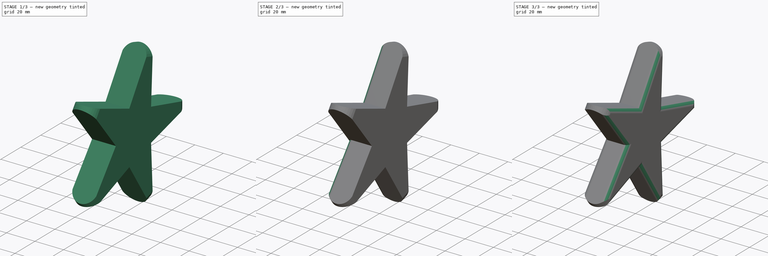
[diagram: build sequence overview — one tinted view per stage of 3, left to right]
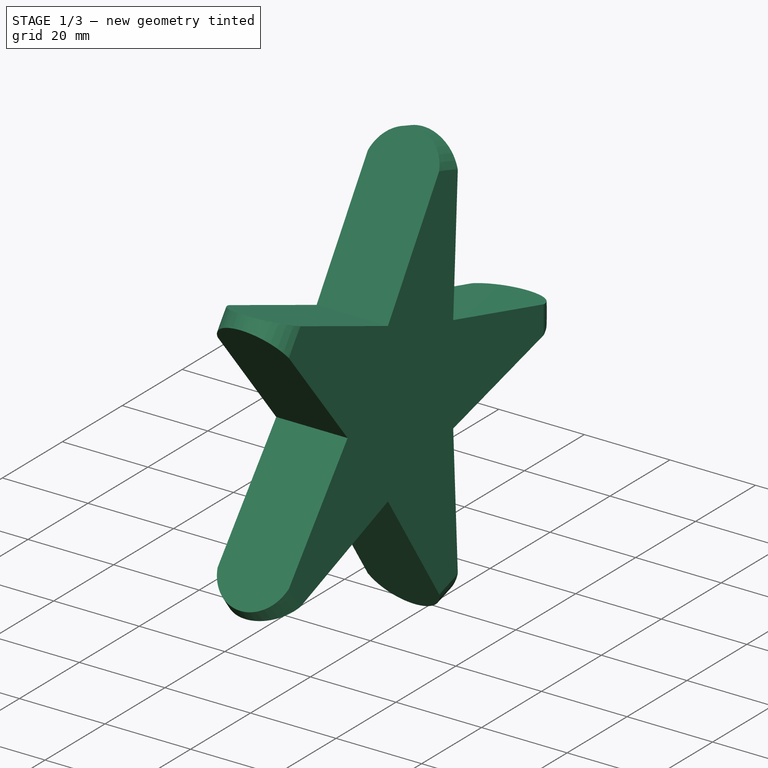
[diagram: stage 1 of 3 — iso view after this stage's code; geometry added in this stage tinted green]
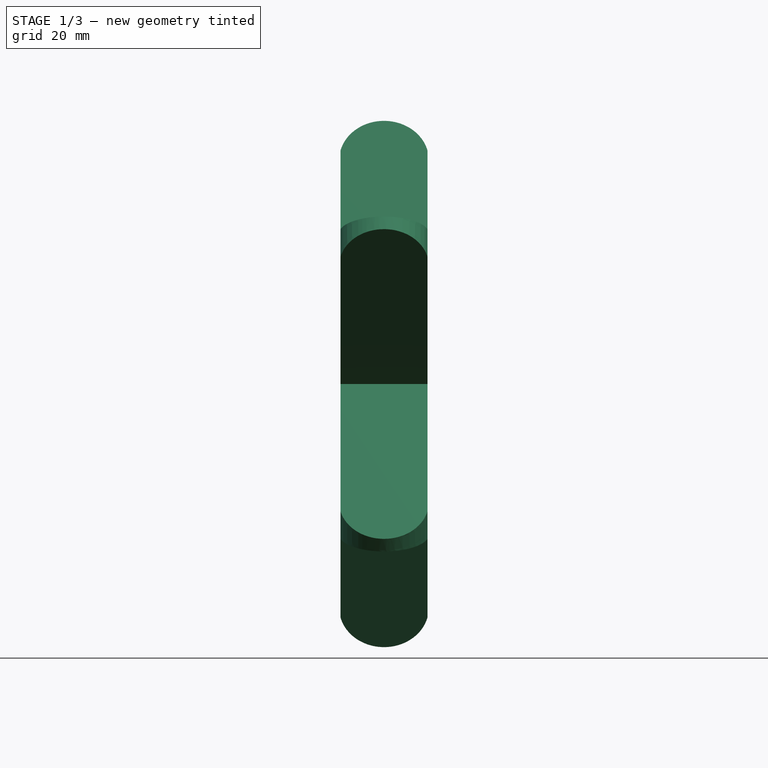
[diagram: stage 1 of 3 — front view after this stage's code; geometry added in this stage tinted green]
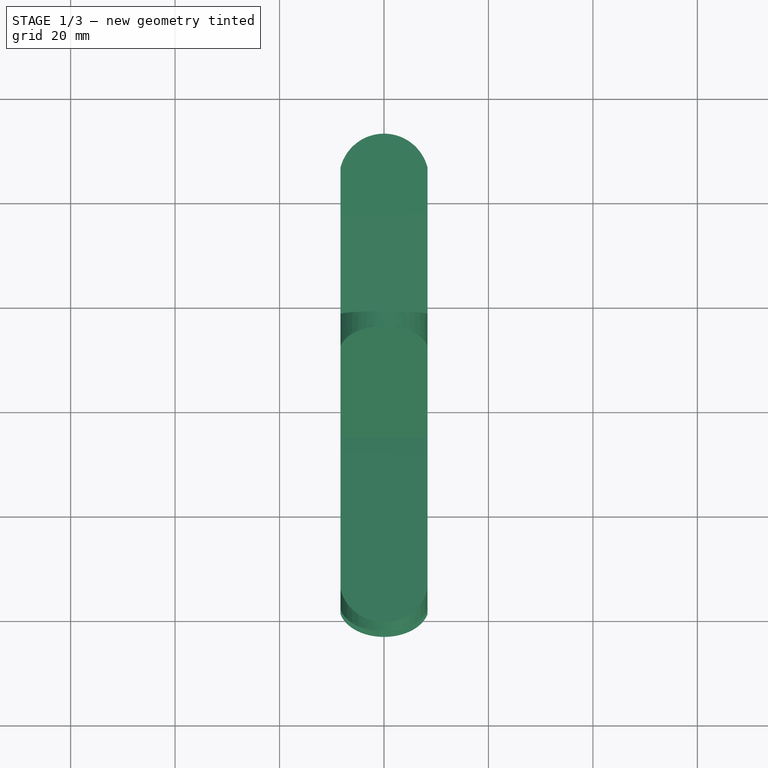
[diagram: stage 1 of 3 — top view after this stage's code; geometry added in this stage tinted green]
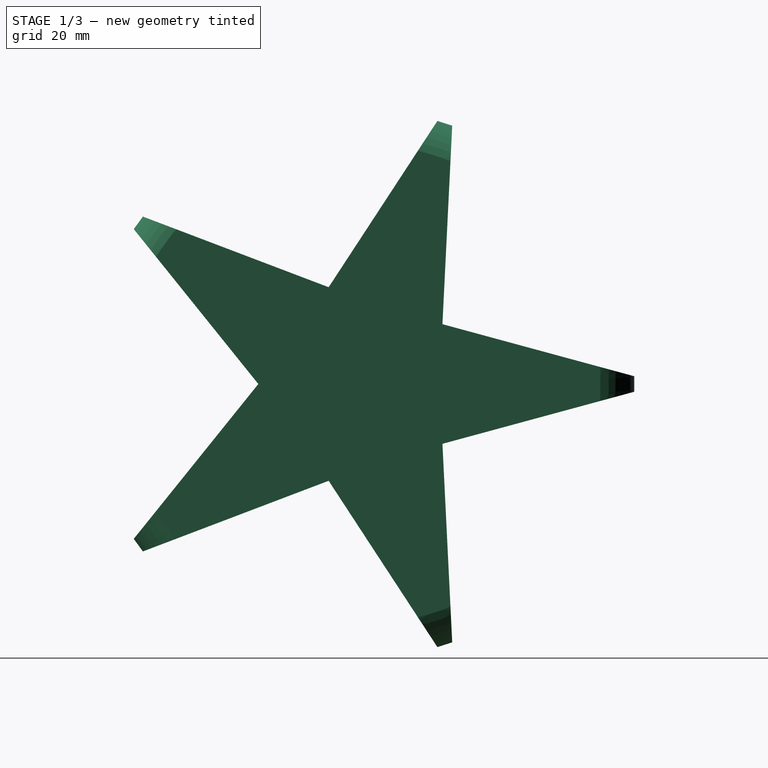
[diagram: stage 1 of 3 — right view after this stage's code; geometry added in this stage tinted green]
FCSTD DOCUMENT  (FreeCAD 0.16R6705 (Git))
Label: stella
License: All rights reserved
LicenseURL: http://it.wikipedia.org/wiki/<copyright redacted>
objects: PartDesign::Fillet×5, Sketcher::SketchObject×2, PartDesign::Revolution×1, PartDesign::Pocket×1, PartDesign::PolarPattern×1
note: 12 computed .brp shape members not serialized (recipe doc carries the construction recipe); baked Part::Feature solids carry a one-line shape summary decoded from their .brp

FEATURE [Sketcher::SketchObject] Sketch
  Placement = pos=(0,0,0) rot=(-1,0,0;4.71239rad)
  sketch-geometry (4):
    g0: LineSegment StartX=-8.34016 StartY=46.0105 StartZ=0 EndX=-8.34016 EndY=0 EndZ=0
    g1: LineSegment StartX=8.34016 StartY=46.0105 StartZ=0 EndX=8.34016 EndY=0 EndZ=0
    g2: ArcOfCircle CenterX=0 CenterY=43.9058 CenterZ=0 NormalX=0 NormalY=0 NormalZ=1 Radius=8.60162 StartAngle=0.247196 EndAngle=2.8944
    g3: LineSegment StartX=-8.34016 StartY=0 StartZ=0 EndX=8.34016 EndY=0 EndZ=0
  constraints (9):
    c: Coincident(g2,g1)
    c: Coincident(g0,g2)
    c: Symmetric(g0,g1,g-2)
    c: PointOnObject(g0,g-1)
    c: PointOnObject(g1,g-1)
    c: Symmetric(g1,g0,g-2)
    c: Coincident(g1,g3)
    c: Coincident(g0,g3)
    c: Vertical(g0)
FEATURE [PartDesign::Revolution] Revolution
  Angle = 360
  Axis = (1,0,0)
  Base = (0,0,0)
  Placement = pos=(0,0,0) rot=(-1,0,0;4.71239rad)
  ReferenceAxis = -> Sketch [H_Axis]
  Sketch = -> Sketch
FEATURE [Sketcher::SketchObject] Sketch002
  Placement = pos=(-8.34016,0,0) rot=(0.707107,0,-0.707107;3.14159rad)
  Support = -> Revolution [Face2]
  sketch-geometry (3):
    g0: LineSegment StartX=-30.9277 StartY=44.3673 StartZ=0 EndX=0 EndY=19.4846 EndZ=0
    g1: LineSegment StartX=0 StartY=19.4846 StartZ=0 EndX=30.9277 EndY=44.3673 EndZ=0
    g2: ArcOfCircle CenterX=0 CenterY=-3.26328 CenterZ=0 NormalX=0 NormalY=0 NormalZ=1 Radius=56.7908 StartAngle=0.994897 EndAngle=2.1467
  constraints (5):
    c: Coincident(g0,g1)
    c: Symmetric(g1,g0,g-2)
    c: PointOnObject(g0,g-2)
    c: Coincident(g0,g2)
    c: Coincident(g1,g2)
FEATURE [PartDesign::Pocket] Pocket
  Length = 5
  Placement = pos=(0,0,0) rot=(-1,0,0;4.71239rad)
  Sketch = -> Sketch002
  Type = 1
FEATURE [PartDesign::PolarPattern] PolarPattern
  Angle = 360
  Axis = -> Sketch002 [N_Axis]
  Occurrences = 5
  Originals = -> [Pocket]
  Placement = pos=(0,0,0) rot=(-1,0,0;4.71239rad)
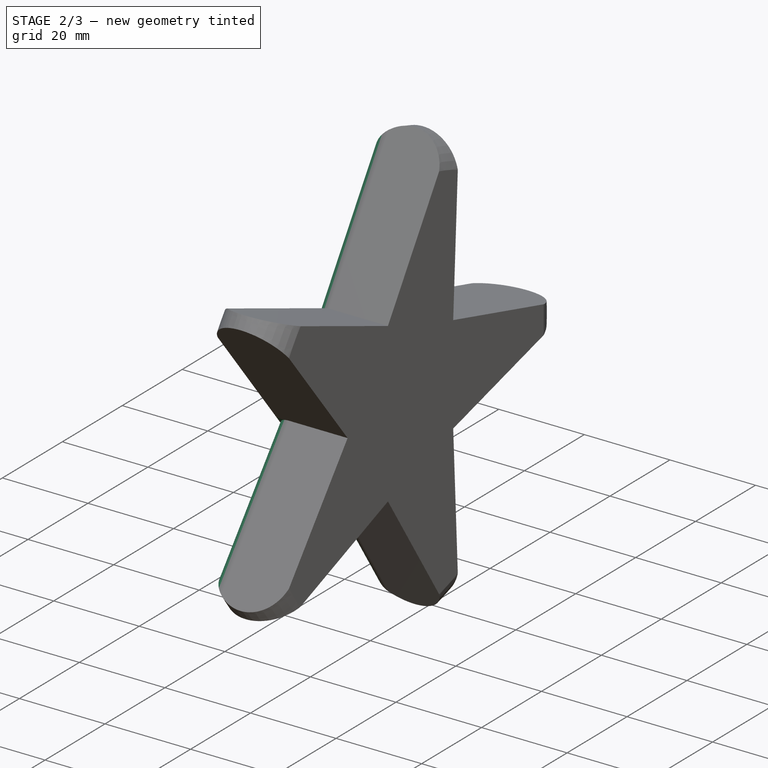
[diagram: stage 2 of 3 — iso view after this stage's code; geometry added in this stage tinted green]
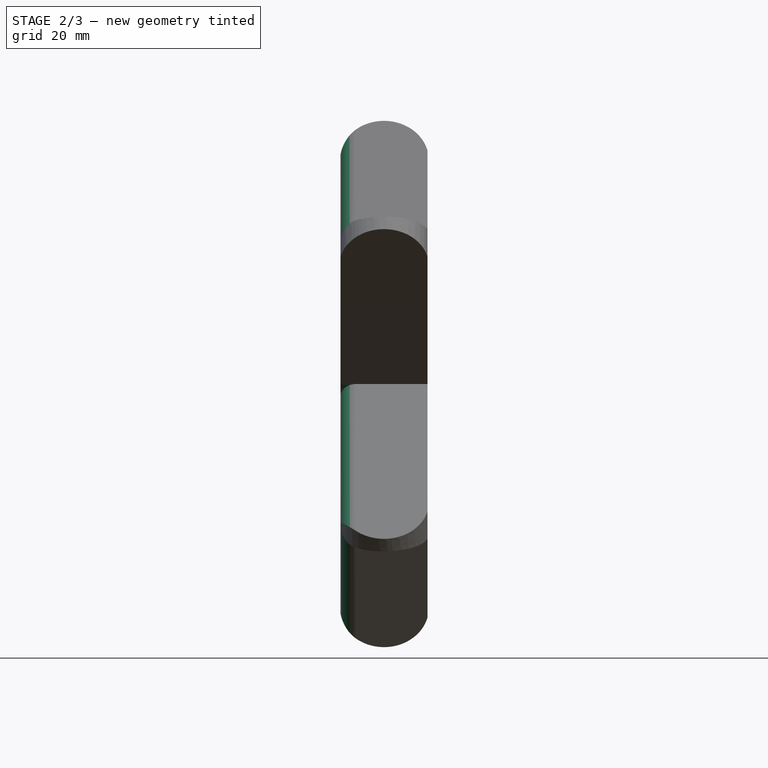
[diagram: stage 2 of 3 — front view after this stage's code; geometry added in this stage tinted green]
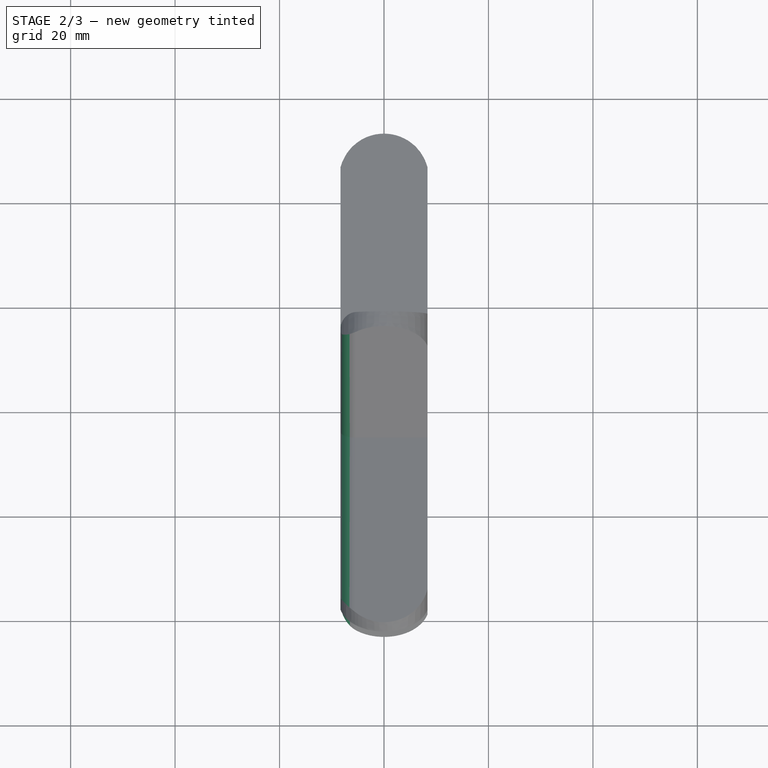
[diagram: stage 2 of 3 — top view after this stage's code; geometry added in this stage tinted green]
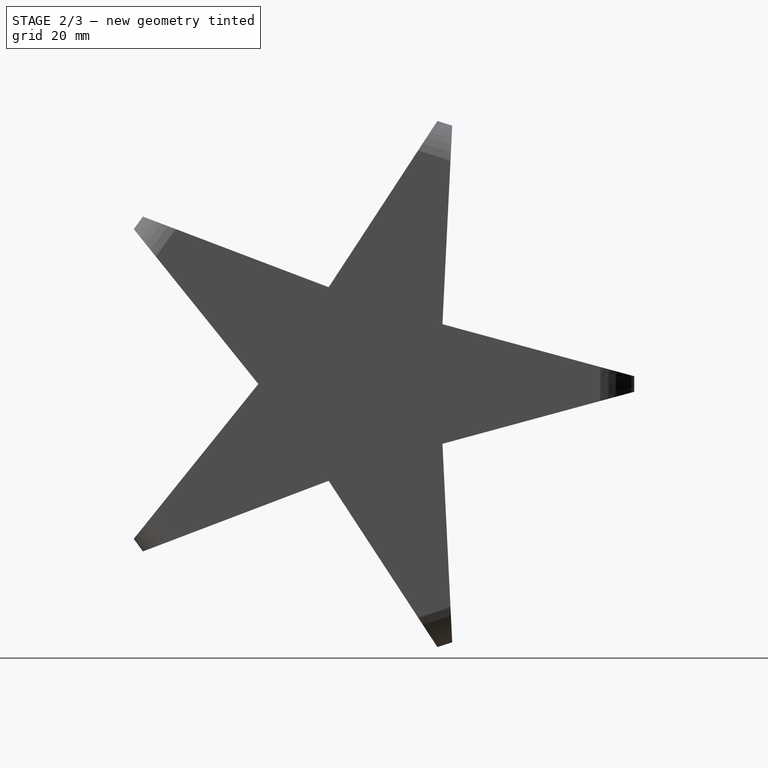
[diagram: stage 2 of 3 — right view after this stage's code; geometry added in this stage tinted green]
FEATURE [PartDesign::Fillet] Fillet
  Base = -> PolarPattern [Edge8]
  Placement = pos=(0,0,0) rot=(-1,0,0;4.71239rad)
  Radius = 3
FEATURE [PartDesign::Fillet] Fillet001
  Base = -> Fillet [Edge3,Edge5,Edge9,Edge11,Edge16,Edge12,Edge10]
  Placement = pos=(0,0,0) rot=(-1,0,0;4.71239rad)
  Radius = 3
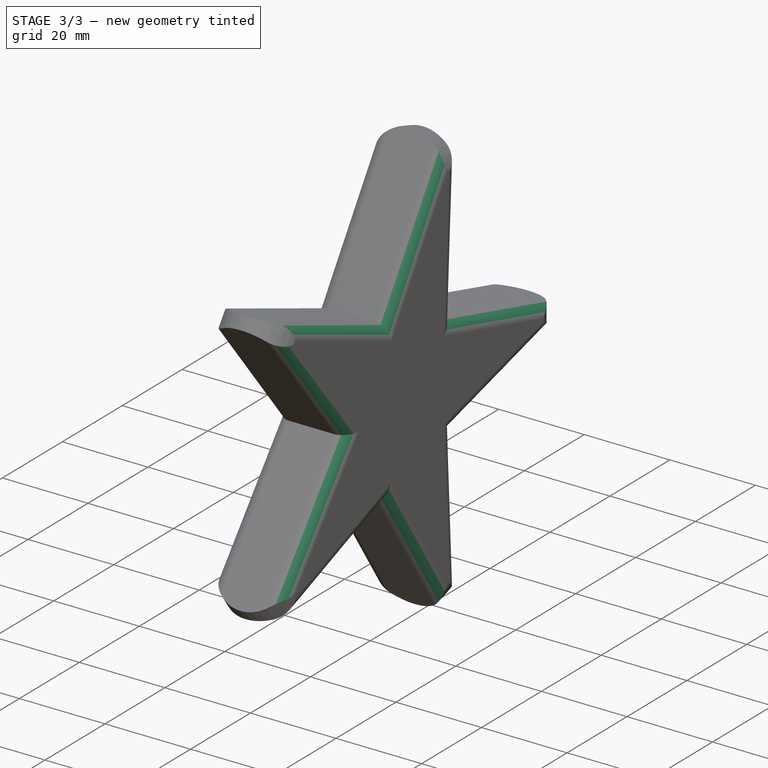
[diagram: stage 3 of 3 — iso view after this stage's code; geometry added in this stage tinted green]
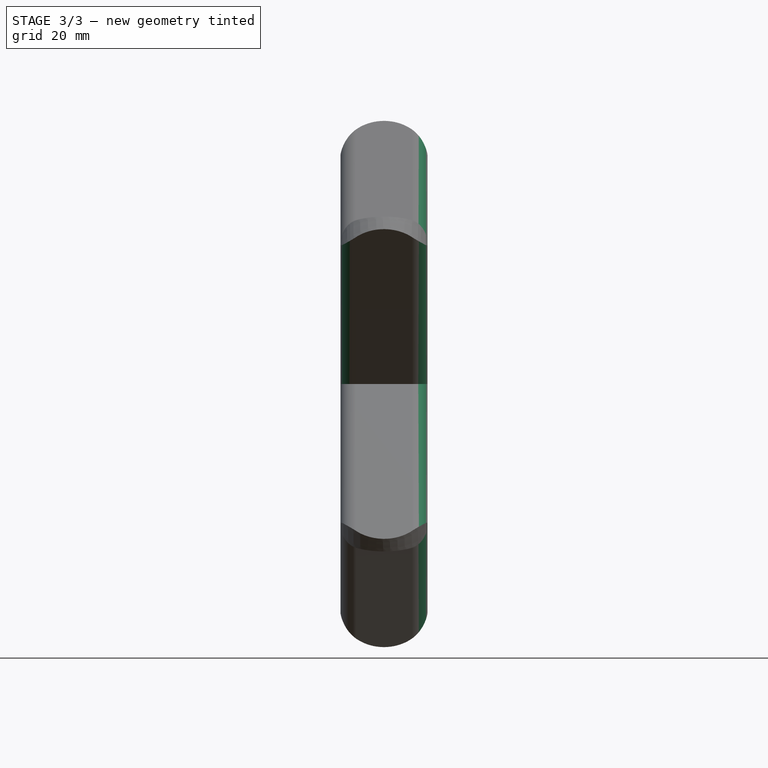
[diagram: stage 3 of 3 — front view after this stage's code; geometry added in this stage tinted green]
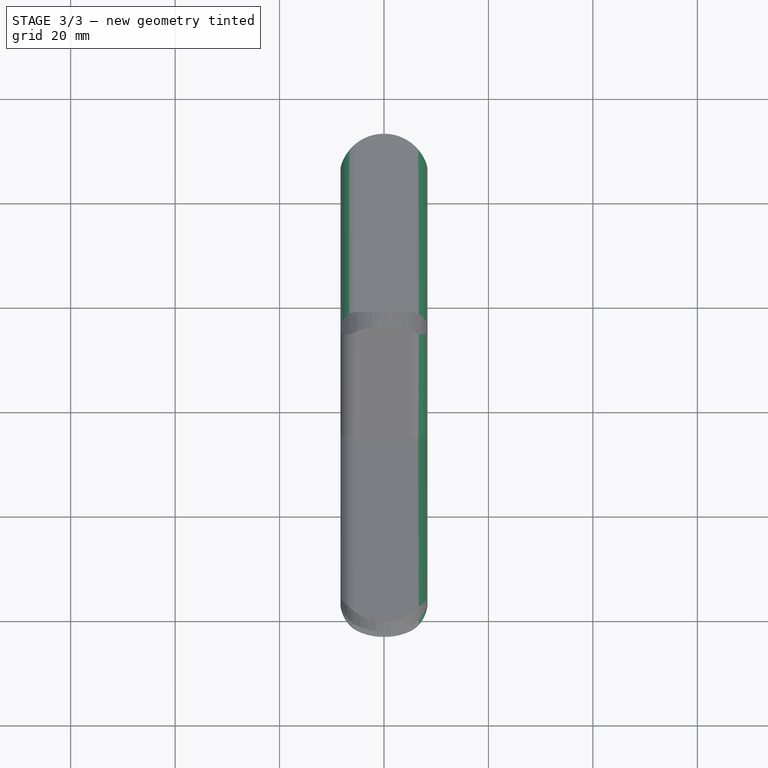
[diagram: stage 3 of 3 — top view after this stage's code; geometry added in this stage tinted green]
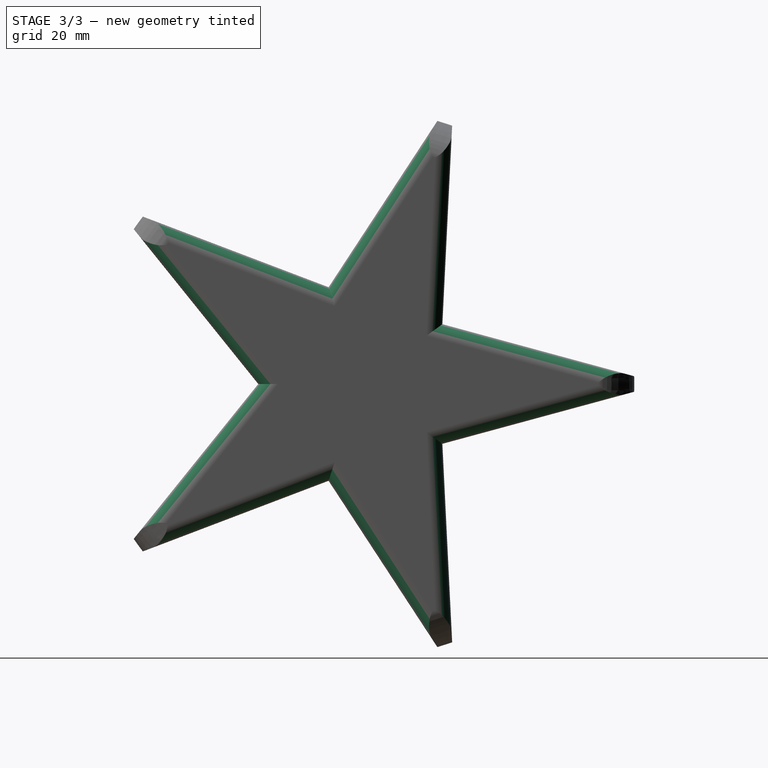
[diagram: stage 3 of 3 — right view after this stage's code; geometry added in this stage tinted green]
FEATURE [PartDesign::Fillet] Fillet002
  Base = -> Fillet001 [Edge7]
  Placement = pos=(0,0,0) rot=(-1,0,0;4.71239rad)
  Radius = 3
FEATURE [PartDesign::Fillet] Fillet003
  Base = -> Fillet002 [Edge13]
  Placement = pos=(0,0,0) rot=(-1,0,0;4.71239rad)
  Radius = 3
FEATURE [PartDesign::Fillet] Fillet004
  Base = -> Fillet003 [Edge67,Edge68,Edge69,Edge70,Edge62,Edge64,Edge71,Edge72,Edge73,Edge66,Edge59,Edge41,Edge24,Edge36,Edge51]
  Placement = pos=(0,0,0) rot=(-1,0,0;4.71239rad)
  Radius = 3
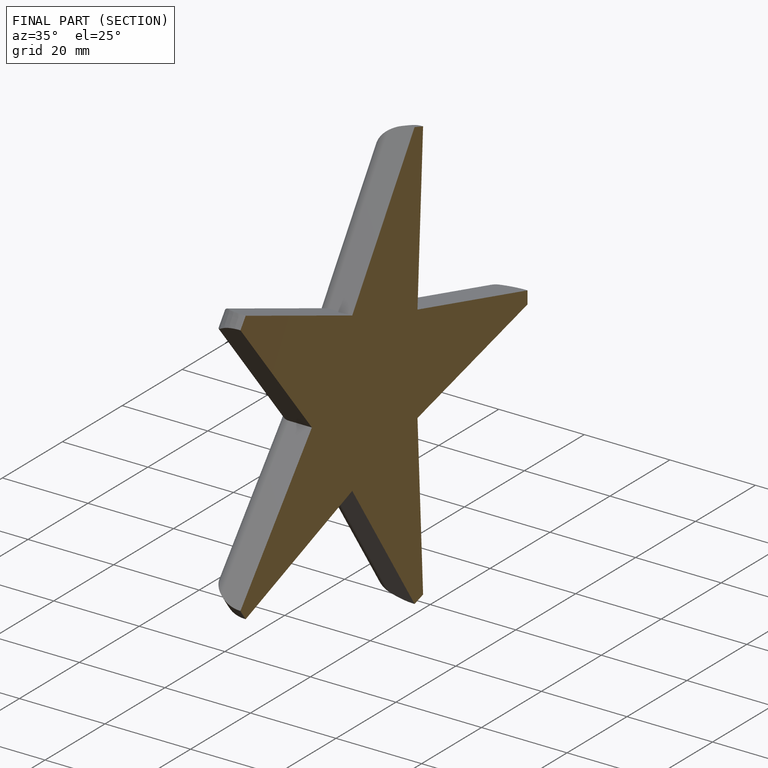
[diagram: finished part — half-section view (interior)]
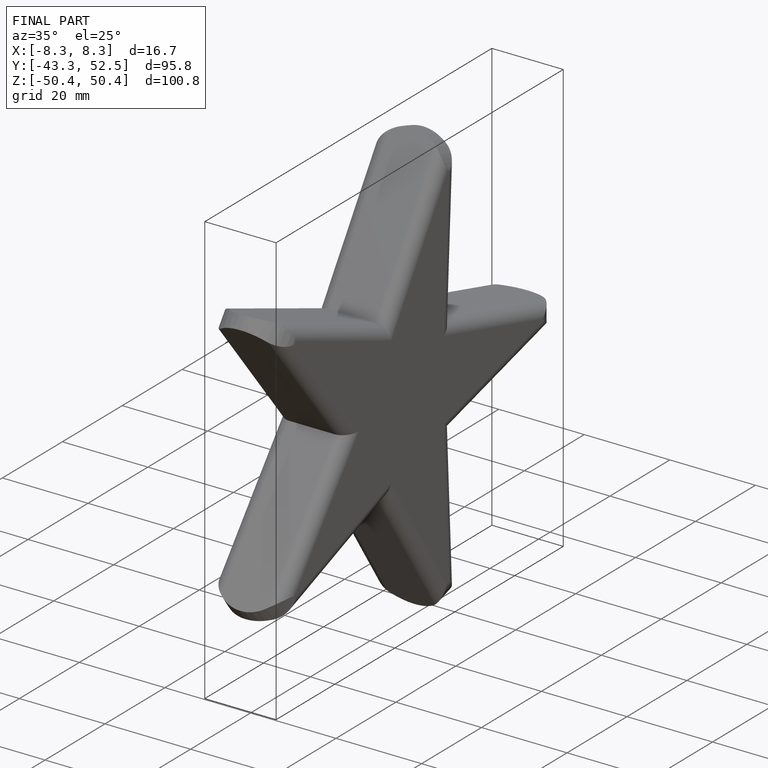
[diagram: finished part — iso view with bounding-box wireframe]
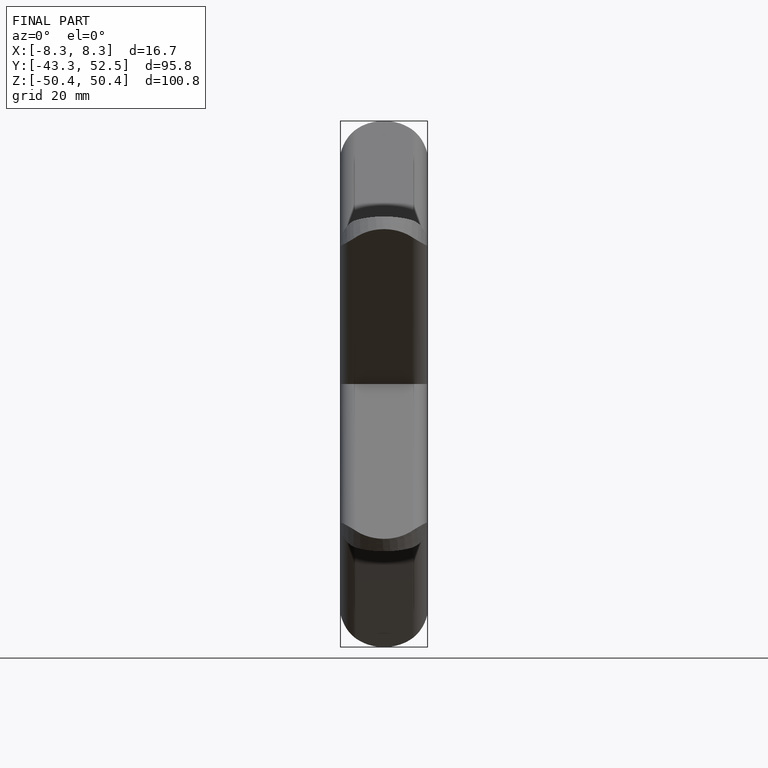
[diagram: finished part — front view with bounding-box wireframe]
